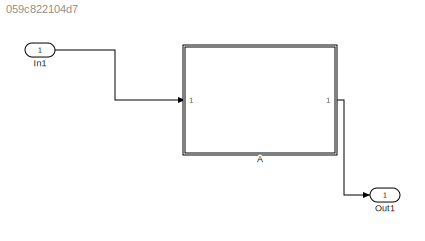
MODEL slx_059c822104d7
KIND model
CONFIG AbsTol = auto
CONFIG EnableMultiTasking = on
CONFIG FixedStep = 0.200000
CONFIG MaxStep = auto
CONFIG MinStep = auto
CONFIG RelTol = 1e-3
CONFIG SampleTimeConstraint = Unconstrained
CONFIG Solver = FixedStepDiscrete
CONFIG SolverName = FixedStepDiscrete
CONFIG StartTime = 0.0
CONFIG StopTime = 10.0
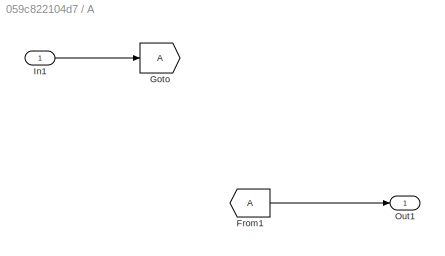
BLOCK [SubSystem] A
  Ports = [1, 1]
  RequestExecContextInheritance = off
  Variant = off
BLOCK [From] A/From1
BLOCK [Goto] A/Goto
BLOCK [Inport] A/In1
  IconDisplay = Port number
  PortDimensions = 3
BLOCK [Outport] A/Out1
  IconDisplay = Port number
BLOCK [Inport] In1
  IconDisplay = Port number
BLOCK [Outport] Out1
  IconDisplay = Port number
LINE A/From1:1 -> A/Out1:1
LINE A/In1:1 -> A/Goto:1
LINE A:1 -> Out1:1
LINE In1:1 -> A:1
